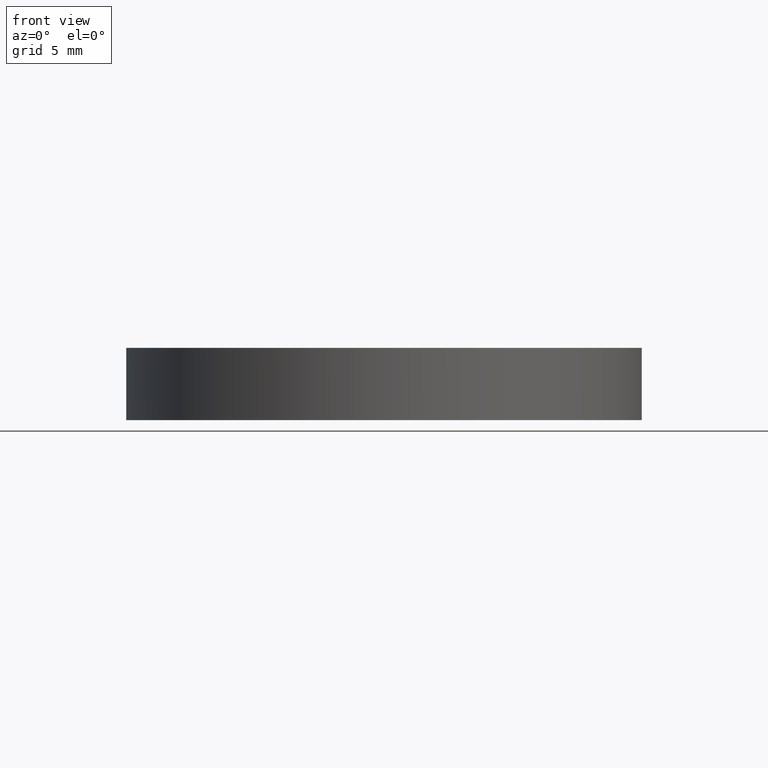
[diagram: clean part render]
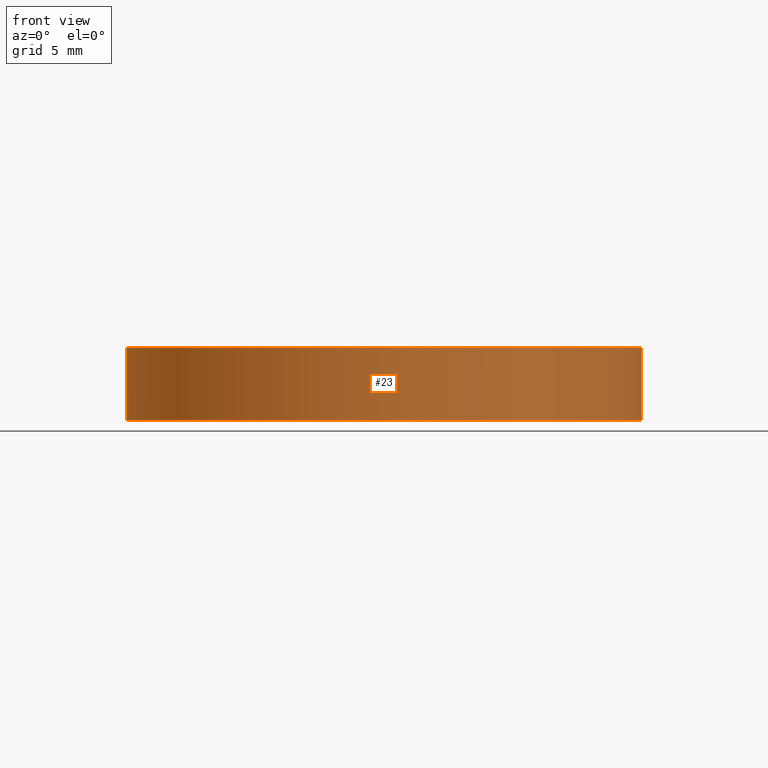
[diagram: same view with one face highlighted and labeled with its STEP entity id]
A machine part, front view. The second image highlights one B-rep face of the part: STEP entity #23.
In plain terms, the highlighted cylindrical surface (partial cylindrical patch) has radius 12.5 mm, axis along (-0, -0, -1).
Its self-contained STEP definition (entity closure, byte-faithful):
#14 = AXIS2_PLACEMENT_3D ( 'NONE', #336, #81, #271 ) ;
#23 = ADVANCED_FACE ( 'NONE', ( #373 ), #158, .T. ) ;
#24 = DIRECTION ( 'NONE',  ( 0.000000000000000000, 0.000000000000000000, 1.000000000000000000 ) ) ;
#37 = CARTESIAN_POINT ( 'NONE',  ( -12.50000000000000000, 0.000000000000000000, 3.500000000000000000 ) ) ;
#52 = DIRECTION ( 'NONE',  ( -0.000000000000000000, -0.000000000000000000, -1.000000000000000000 ) ) ;
#55 = VECTOR ( 'NONE', #316, 1000.000000000000000 ) ;
#57 = CARTESIAN_POINT ( 'NONE',  ( 12.50000000000000000, 1.530808498934191521E-15, 0.000000000000000000 ) ) ;
#60 = ORIENTED_EDGE ( 'NONE', *, *, #62, .T. ) ;
#62 = EDGE_CURVE ( 'NONE', #227, #225, #193, .T. ) ;
#65 = CARTESIAN_POINT ( 'NONE',  ( -12.50000000000000000, 0.000000000000000000, 0.000000000000000000 ) ) ;
#71 = DIRECTION ( 'NONE',  ( -0.000000000000000000, -0.000000000000000000, -1.000000000000000000 ) ) ;
#72 = EDGE_CURVE ( 'NONE', #225, #165, #174, .T. ) ;
#79 = CARTESIAN_POINT ( 'NONE',  ( 12.50000000000000000, 1.530808498934191521E-15, 3.500000000000000000 ) ) ;
#81 = DIRECTION ( 'NONE',  ( 0.000000000000000000, 0.000000000000000000, 1.000000000000000000 ) ) ;
#112 = VECTOR ( 'NONE', #71, 1000.000000000000000 ) ;
#139 = LINE ( 'NONE', #79, #112 ) ;
#158 = CYLINDRICAL_SURFACE ( 'NONE', #353, 12.50000000000000000 ) ;
#161 = CARTESIAN_POINT ( 'NONE',  ( -12.50000000000000000, 0.000000000000000000, 3.500000000000000000 ) ) ;
#165 = VERTEX_POINT ( 'NONE', #57 ) ;
#174 = CIRCLE ( 'NONE', #14, 12.50000000000000000 ) ;
#178 = DIRECTION ( 'NONE',  ( -1.000000000000000000, 0.000000000000000000, 0.000000000000000000 ) ) ;
#179 = EDGE_CURVE ( 'NONE', #227, #252, #186, .T. ) ;
#186 = CIRCLE ( 'NONE', #292, 12.50000000000000000 ) ;
#187 = CARTESIAN_POINT ( 'NONE',  ( 0.000000000000000000, 0.000000000000000000, 3.500000000000000000 ) ) ;
#193 = LINE ( 'NONE', #161, #55 ) ;
#198 = ORIENTED_EDGE ( 'NONE', *, *, #179, .F. ) ;
#225 = VERTEX_POINT ( 'NONE', #65 ) ;
#227 = VERTEX_POINT ( 'NONE', #37 ) ;
#252 = VERTEX_POINT ( 'NONE', #420 ) ;
#271 = DIRECTION ( 'NONE',  ( 1.000000000000000000, 0.000000000000000000, 0.000000000000000000 ) ) ;
#278 = ORIENTED_EDGE ( 'NONE', *, *, #330, .F. ) ;
#281 = CARTESIAN_POINT ( 'NONE',  ( 0.000000000000000000, 0.000000000000000000, 3.500000000000000000 ) ) ;
#292 = AXIS2_PLACEMENT_3D ( 'NONE', #281, #24, #322 ) ;
#316 = DIRECTION ( 'NONE',  ( -0.000000000000000000, -0.000000000000000000, -1.000000000000000000 ) ) ;
#322 = DIRECTION ( 'NONE',  ( 1.000000000000000000, 0.000000000000000000, 0.000000000000000000 ) ) ;
#330 = EDGE_CURVE ( 'NONE', #252, #165, #139, .T. ) ;
#336 = CARTESIAN_POINT ( 'NONE',  ( 0.000000000000000000, 0.000000000000000000, 0.000000000000000000 ) ) ;
#348 = ORIENTED_EDGE ( 'NONE', *, *, #72, .T. ) ;
#353 = AXIS2_PLACEMENT_3D ( 'NONE', #187, #52, #178 ) ;
#373 = FACE_OUTER_BOUND ( 'NONE', #416, .T. ) ;
#416 = EDGE_LOOP ( 'NONE', ( #278, #198, #60, #348 ) ) ;
#420 = CARTESIAN_POINT ( 'NONE',  ( 12.50000000000000000, 1.530808498934191521E-15, 3.500000000000000000 ) ) ;